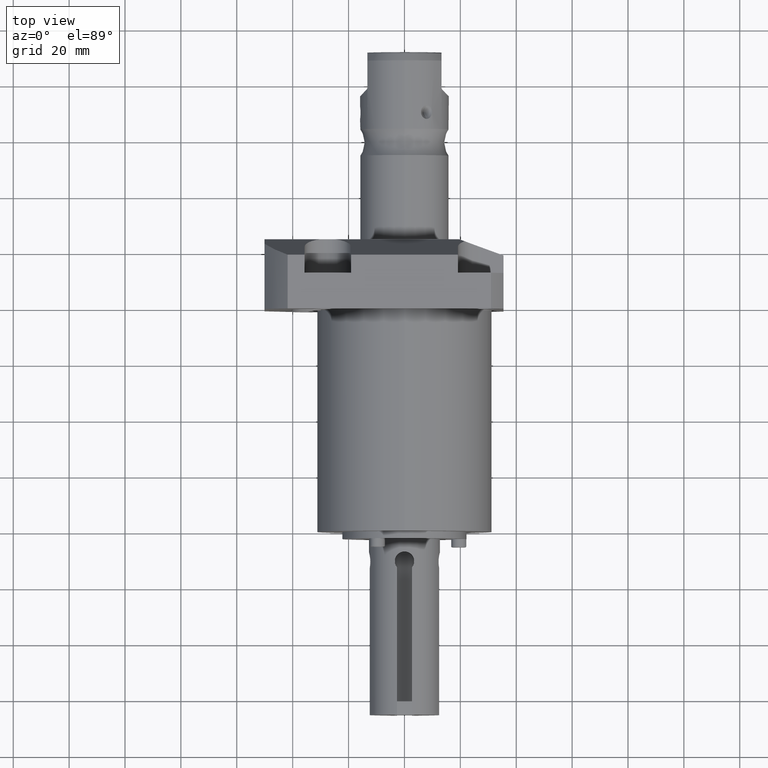
[diagram: clean part render]
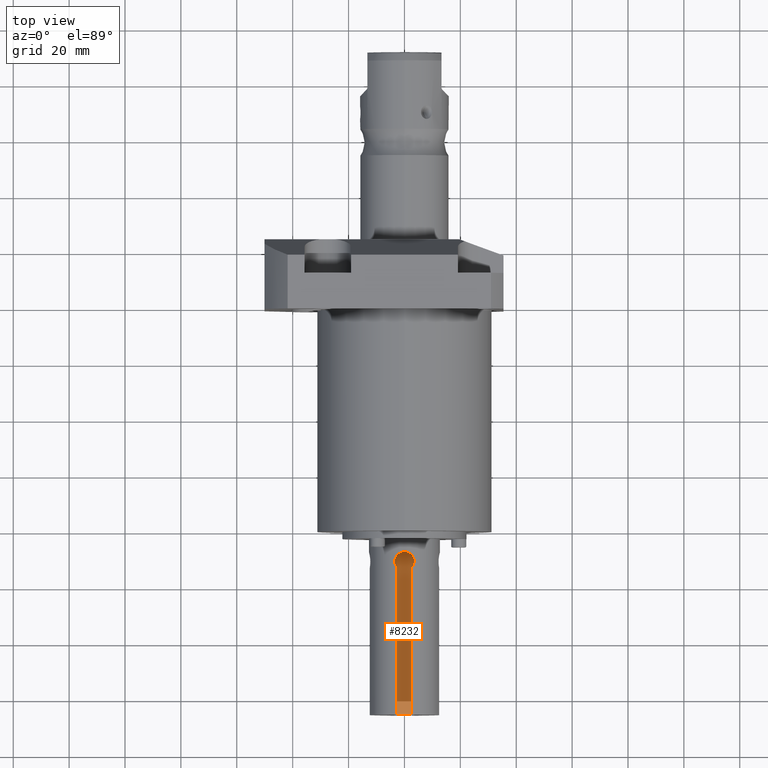
[diagram: same view with one face highlighted and labeled with its STEP entity id]
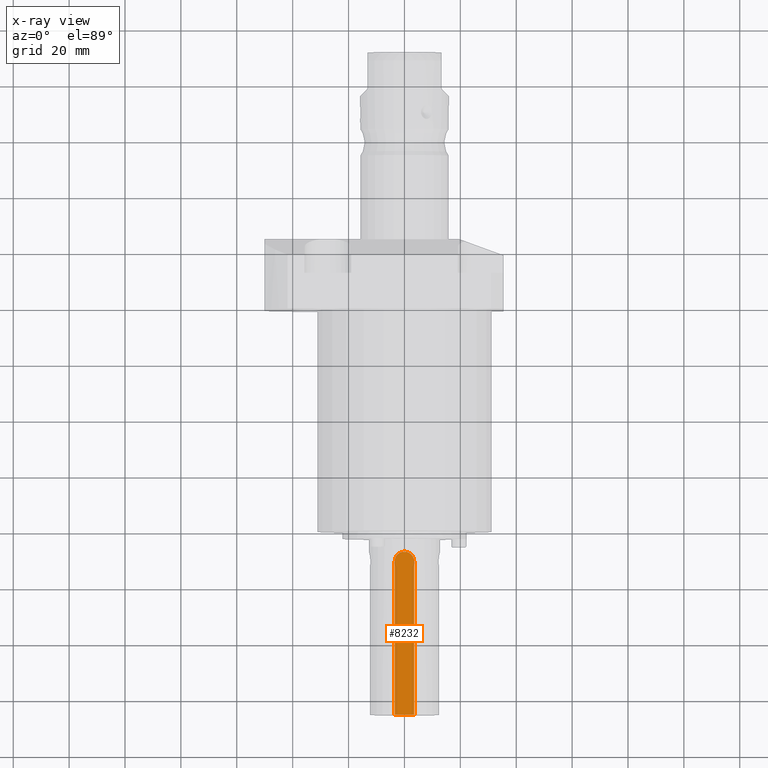
[diagram: x-ray of the same camera — body ghosted, the highlighted face saturated]
A machine part, top view. The second image highlights one B-rep face of the part: STEP entity #8232.
The next image is the same camera in x-ray: the body ghosted, the highlighted face saturated — about 0% of this face is hidden behind the body in this view.
In plain terms, the highlighted planar face has unit normal (0, 0, 1).
Its self-contained STEP definition (entity closure, byte-faithful):
#4112=CARTESIAN_POINT('',(0.E0,-4.2E-1,2.45E-1));
#4113=DIRECTION('',(0.E0,0.E0,1.E0));
#4114=DIRECTION('',(1.E0,0.E0,0.E0));
#4115=AXIS2_PLACEMENT_3D('',#4112,#4113,#4114);
#4120=DIRECTION('',(0.E0,1.E0,0.E0));
#4121=VECTOR('',#4120,2.16E0);
#4122=CARTESIAN_POINT('',(1.375E-1,-2.58E0,2.45E-1));
#4123=LINE('',#4122,#4121);
#4127=DIRECTION('',(-1.E0,0.E0,0.E0));
#4128=VECTOR('',#4127,2.75E-1);
#4129=CARTESIAN_POINT('',(1.375E-1,-2.58E0,2.45E-1));
#4130=LINE('',#4129,#4128);
#4134=DIRECTION('',(0.E0,-1.E0,0.E0));
#4135=VECTOR('',#4134,2.16E0);
#4136=CARTESIAN_POINT('',(-1.375E-1,-4.2E-1,2.45E-1));
#4137=LINE('',#4136,#4135);
#4486=CARTESIAN_POINT('',(1.375E-1,-2.58E0,2.45E-1));
#4487=VERTEX_POINT('',#4486);
#4488=CARTESIAN_POINT('',(-1.375E-1,-2.58E0,2.45E-1));
#4489=VERTEX_POINT('',#4488);
#4498=CARTESIAN_POINT('',(1.375E-1,-4.2E-1,2.45E-1));
#4499=VERTEX_POINT('',#4498);
#4500=CARTESIAN_POINT('',(-1.375E-1,-4.2E-1,2.45E-1));
#4501=VERTEX_POINT('',#4500);
#8220=CARTESIAN_POINT('',(0.E0,0.E0,2.45E-1));
#8221=DIRECTION('',(0.E0,0.E0,1.E0));
#8222=DIRECTION('',(1.E0,0.E0,0.E0));
#8223=AXIS2_PLACEMENT_3D('',#8220,#8221,#8222);
#8224=PLANE('',#8223);
#8225=ORIENTED_EDGE('',*,*,#8196,.F.);
#8226=ORIENTED_EDGE('',*,*,#8213,.F.);
#8227=ORIENTED_EDGE('',*,*,#4876,.T.);
#8229=ORIENTED_EDGE('',*,*,#8228,.F.);
#8230=EDGE_LOOP('',(#8225,#8226,#8227,#8229));
#8231=FACE_OUTER_BOUND('',#8230,.F.);
#4116=CIRCLE('',#4115,1.375E-1);
#4876=EDGE_CURVE('',#4487,#4489,#4130,.T.);
#8196=EDGE_CURVE('',#4499,#4501,#4116,.T.);
#8213=EDGE_CURVE('',#4487,#4499,#4123,.T.);
#8228=EDGE_CURVE('',#4501,#4489,#4137,.T.);
#8232=ADVANCED_FACE('',(#8231),#8224,.T.);